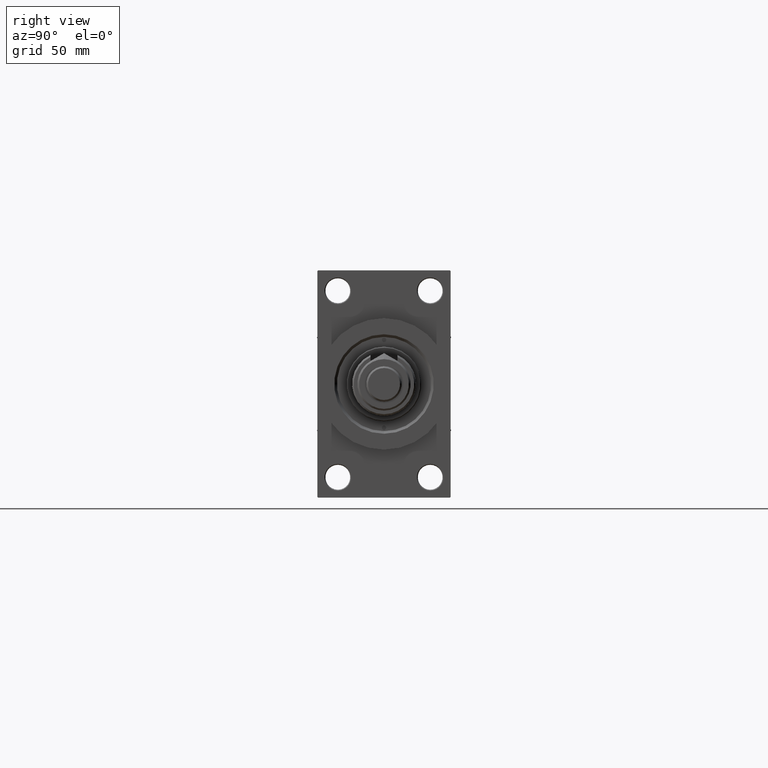
[diagram: clean part render]
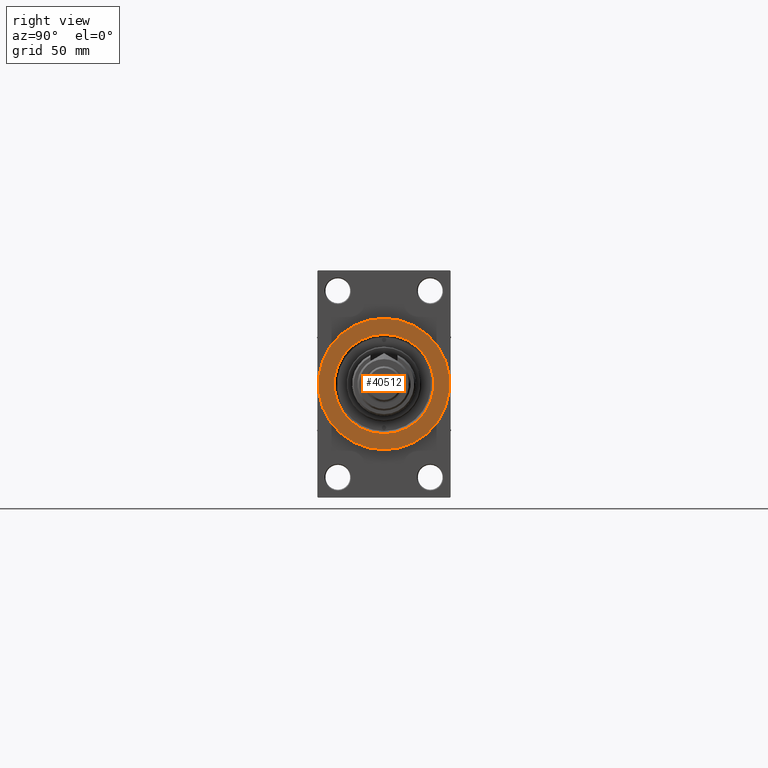
[diagram: same view with one face highlighted and labeled with its STEP entity id]
A machine part, right view. The second image highlights one B-rep face of the part: STEP entity #40512.
In plain terms, the highlighted planar face has unit normal (1, 0, 0).
Its self-contained STEP definition (entity closure, byte-faithful):
#502 = DIRECTION ( 'NONE',  ( 0.000000000000000000, 0.000000000000000000, -1.000000000000000000 ) ) ;
#2834 = AXIS2_PLACEMENT_3D ( 'NONE', #33714, #7308, #13464 ) ;
#4089 = EDGE_CURVE ( 'NONE', #21668, #27513, #40943, .T. ) ;
#4828 = AXIS2_PLACEMENT_3D ( 'NONE', #48487, #48733, #25591 ) ;
#5591 = ORIENTED_EDGE ( 'NONE', *, *, #18606, .T. ) ;
#7308 = DIRECTION ( 'NONE',  ( -1.000000000000000000, -0.000000000000000000, -0.000000000000000000 ) ) ;
#11106 = CIRCLE ( 'NONE', #38728, 28.00000000000005329 ) ;
#11717 = EDGE_LOOP ( 'NONE', ( #32752, #38113 ) ) ;
#12634 = DIRECTION ( 'NONE',  ( 0.000000000000000000, 0.000000000000000000, -1.000000000000000000 ) ) ;
#13464 = DIRECTION ( 'NONE',  ( 0.000000000000000000, 0.000000000000000000, -1.000000000000000000 ) ) ;
#17003 = DIRECTION ( 'NONE',  ( 0.000000000000000000, 0.000000000000000000, -1.000000000000000000 ) ) ;
#17185 = FACE_BOUND ( 'NONE', #11717, .T. ) ;
#17454 = CARTESIAN_POINT ( 'NONE',  ( 259.0000000000000000, 4.531193156845206793E-15, -37.00000000000000000 ) ) ;
#17865 = EDGE_CURVE ( 'NONE', #24719, #28123, #26697, .T. ) ;
#18606 = EDGE_CURVE ( 'NONE', #28123, #24719, #42226, .T. ) ;
#20303 = CARTESIAN_POINT ( 'NONE',  ( 259.0000000000000000, 0.000000000000000000, 0.000000000000000000 ) ) ;
#20316 = ORIENTED_EDGE ( 'NONE', *, *, #17865, .T. ) ;
#21668 = VERTEX_POINT ( 'NONE', #46486 ) ;
#23431 = AXIS2_PLACEMENT_3D ( 'NONE', #32700, #43429, #12634 ) ;
#24719 = VERTEX_POINT ( 'NONE', #17454 ) ;
#25591 = DIRECTION ( 'NONE',  ( 0.000000000000000000, 0.000000000000000000, -1.000000000000000000 ) ) ;
#26697 = CIRCLE ( 'NONE', #4828, 37.00000000000000000 ) ;
#27513 = VERTEX_POINT ( 'NONE', #32570 ) ;
#27894 = PLANE ( 'NONE',  #23431 ) ;
#28123 = VERTEX_POINT ( 'NONE', #40343 ) ;
#31481 = CARTESIAN_POINT ( 'NONE',  ( 259.0000000000000000, 0.000000000000000000, 0.000000000000000000 ) ) ;
#32570 = CARTESIAN_POINT ( 'NONE',  ( 259.0000000000000000, 0.000000000000000000, -28.00000000000005329 ) ) ;
#32700 = CARTESIAN_POINT ( 'NONE',  ( 259.0000000000000000, 0.000000000000000000, 0.000000000000000000 ) ) ;
#32752 = ORIENTED_EDGE ( 'NONE', *, *, #36043, .T. ) ;
#33714 = CARTESIAN_POINT ( 'NONE',  ( 259.0000000000000000, 0.000000000000000000, 0.000000000000000000 ) ) ;
#34486 = EDGE_LOOP ( 'NONE', ( #5591, #20316 ) ) ;
#35735 = AXIS2_PLACEMENT_3D ( 'NONE', #31481, #46757, #502 ) ;
#36043 = EDGE_CURVE ( 'NONE', #27513, #21668, #11106, .T. ) ;
#36338 = DIRECTION ( 'NONE',  ( -1.000000000000000000, -0.000000000000000000, -0.000000000000000000 ) ) ;
#38113 = ORIENTED_EDGE ( 'NONE', *, *, #4089, .T. ) ;
#38728 = AXIS2_PLACEMENT_3D ( 'NONE', #20303, #36338, #17003 ) ;
#40343 = CARTESIAN_POINT ( 'NONE',  ( 259.0000000000000000, 0.000000000000000000, 37.00000000000000000 ) ) ;
#40512 = ADVANCED_FACE ( 'NONE', ( #17185, #47238 ), #27894, .T. ) ;
#40943 = CIRCLE ( 'NONE', #2834, 28.00000000000005329 ) ;
#42226 = CIRCLE ( 'NONE', #35735, 37.00000000000000000 ) ;
#43429 = DIRECTION ( 'NONE',  ( 1.000000000000000000, 0.000000000000000000, 0.000000000000000000 ) ) ;
#46486 = CARTESIAN_POINT ( 'NONE',  ( 259.0000000000000000, 3.429011037612595587E-15, 28.00000000000005329 ) ) ;
#46757 = DIRECTION ( 'NONE',  ( 1.000000000000000000, 0.000000000000000000, 0.000000000000000000 ) ) ;
#47238 = FACE_OUTER_BOUND ( 'NONE', #34486, .T. ) ;
#48487 = CARTESIAN_POINT ( 'NONE',  ( 259.0000000000000000, 0.000000000000000000, 0.000000000000000000 ) ) ;
#48733 = DIRECTION ( 'NONE',  ( 1.000000000000000000, 0.000000000000000000, 0.000000000000000000 ) ) ;